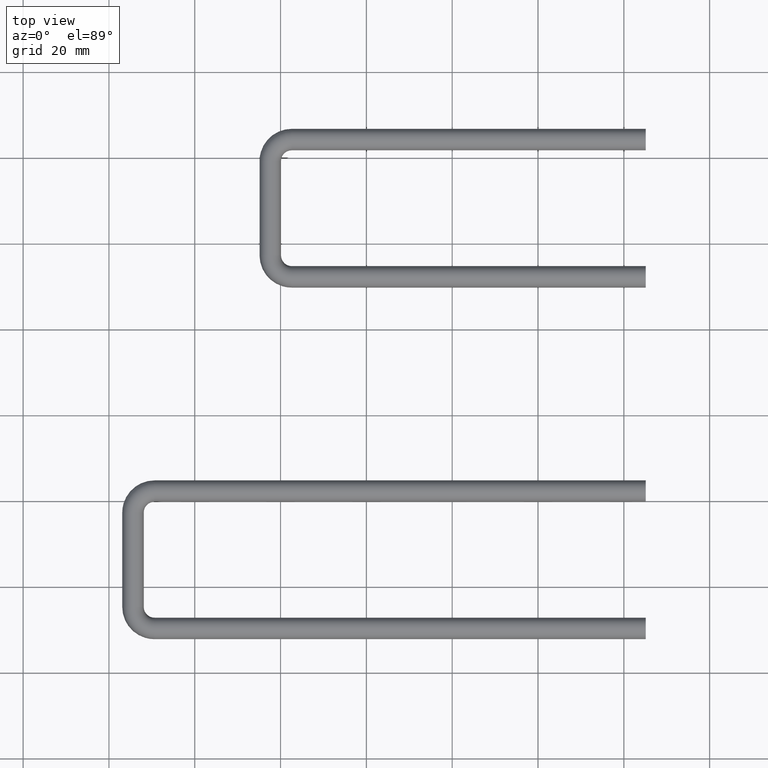
[diagram: clean part render]
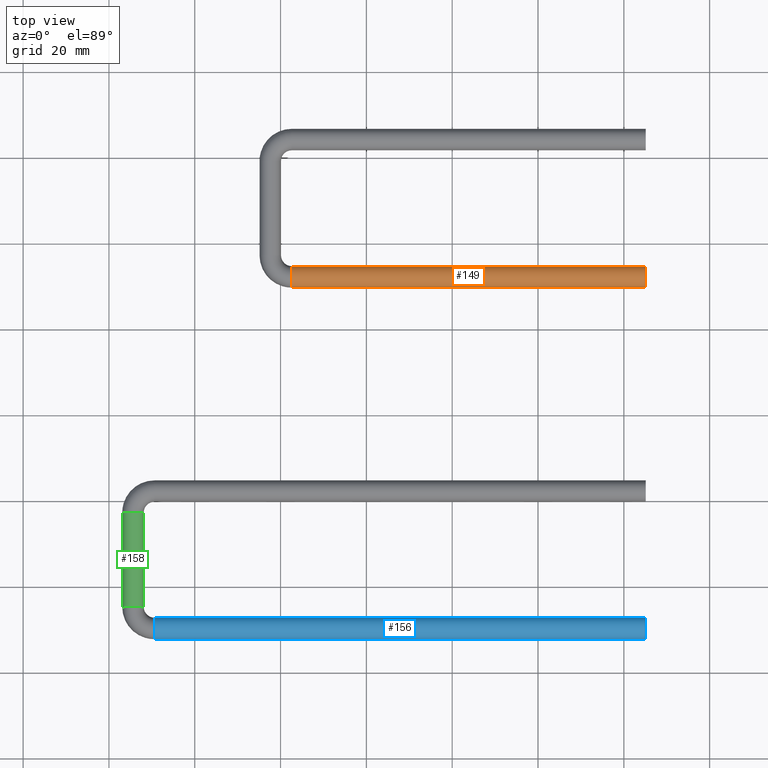
[diagram: same view with three faces highlighted in distinct colors, each labeled with its STEP entity id]
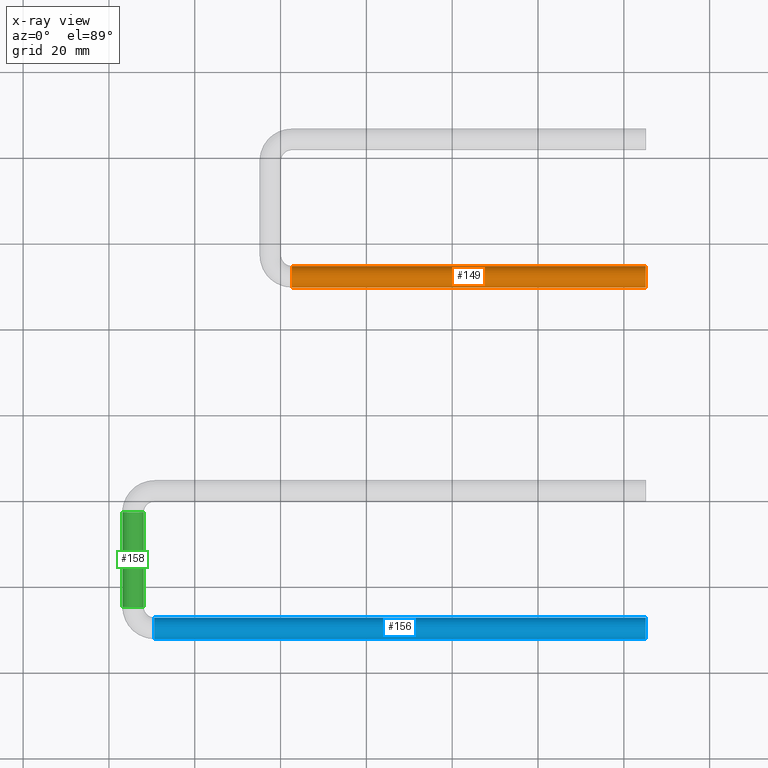
[diagram: x-ray of the same camera — body ghosted, the three highlighted faces saturated]
A machine part, top view with three faces highlighted in distinct colors.
The next image is the same camera in x-ray (body ghosted, the three faces saturated) — at least one of them is partly hidden behind the body in this view.
Their STEP definitions:

[orange] entity #149 — the highlighted cylindrical surface (bore or boss wall) has radius 2.5 mm, axis along (1, -0, -0).
#35=FACE_BOUND('',#60,.T.);
#45=FACE_OUTER_BOUND('',#59,.T.);
#59=EDGE_LOOP('',(#119));
#60=EDGE_LOOP('',(#120));
#83=CIRCLE('',#167,2.5);
#84=CIRCLE('',#168,2.5);
#95=VERTEX_POINT('',#260);
#96=VERTEX_POINT('',#262);
#107=EDGE_CURVE('',#95,#95,#83,.T.);
#108=EDGE_CURVE('',#96,#96,#84,.T.);
#119=ORIENTED_EDGE('',*,*,#107,.F.);
#120=ORIENTED_EDGE('',*,*,#108,.T.);
#143=CYLINDRICAL_SURFACE('',#166,2.5);
#149=ADVANCED_FACE('',(#45,#35),#143,.T.);
#166=AXIS2_PLACEMENT_3D('',#259,#198,#199);
#167=AXIS2_PLACEMENT_3D('',#261,#200,#201);
#168=AXIS2_PLACEMENT_3D('',#263,#202,#203);
#198=DIRECTION('center_axis',(1.,0.,0.));
#199=DIRECTION('ref_axis',(0.,1.,0.));
#200=DIRECTION('center_axis',(1.,7.11884744652049E-16,0.));
#201=DIRECTION('ref_axis',(-7.11884744652049E-16,1.,0.));
#202=DIRECTION('center_axis',(1.,7.11884744652049E-16,0.));
#203=DIRECTION('ref_axis',(-7.11884744652049E-16,1.,0.));
#259=CARTESIAN_POINT('Origin',(-38.75,-16.,0.));
#260=CARTESIAN_POINT('',(43.75,-18.5,3.06161699786838E-16));
#261=CARTESIAN_POINT('Origin',(43.75,-16.,0.));
#262=CARTESIAN_POINT('',(-38.75,-18.5,3.06161699786838E-16));
#263=CARTESIAN_POINT('Origin',(-38.75,-16.,0.));

[blue] entity #156 — the highlighted cylindrical surface (bore or boss wall) has radius 2.5 mm, axis along (1, 0, -0).
#40=FACE_BOUND('',#72,.T.);
#52=FACE_OUTER_BOUND('',#71,.T.);
#71=EDGE_LOOP('',(#131));
#72=EDGE_LOOP('',(#132));
#89=CIRCLE('',#181,2.5);
#90=CIRCLE('',#182,2.5);
#101=VERTEX_POINT('',#280);
#102=VERTEX_POINT('',#282);
#113=EDGE_CURVE('',#101,#101,#89,.T.);
#114=EDGE_CURVE('',#102,#102,#90,.T.);
#131=ORIENTED_EDGE('',*,*,#113,.F.);
#132=ORIENTED_EDGE('',*,*,#114,.T.);
#146=CYLINDRICAL_SURFACE('',#180,2.5);
#156=ADVANCED_FACE('',(#52,#40),#146,.T.);
#180=AXIS2_PLACEMENT_3D('',#279,#226,#227);
#181=AXIS2_PLACEMENT_3D('',#281,#228,#229);
#182=AXIS2_PLACEMENT_3D('',#283,#230,#231);
#226=DIRECTION('center_axis',(1.,1.35747793403949E-16,0.));
#227=DIRECTION('ref_axis',(-1.35747793403949E-16,1.,0.));
#228=DIRECTION('center_axis',(1.,1.10245823063463E-16,0.));
#229=DIRECTION('ref_axis',(-1.10245823063463E-16,1.,0.));
#230=DIRECTION('center_axis',(1.,1.10245823063463E-16,0.));
#231=DIRECTION('ref_axis',(-1.10245823063463E-16,1.,0.));
#279=CARTESIAN_POINT('Origin',(-54.75,-16.,0.));
#280=CARTESIAN_POINT('',(59.75,-18.5,3.06161699786838E-16));
#281=CARTESIAN_POINT('Origin',(59.75,-16.,0.));
#282=CARTESIAN_POINT('',(-54.75,-18.5,3.06161699786838E-16));
#283=CARTESIAN_POINT('Origin',(-54.75,-16.,0.));

[green] entity #158 — the highlighted cylindrical surface (bore or boss wall) has radius 2.5 mm, axis along (0, -1, -0).
#42=FACE_BOUND('',#76,.T.);
#54=FACE_OUTER_BOUND('',#75,.T.);
#75=EDGE_LOOP('',(#135));
#76=EDGE_LOOP('',(#136));
#91=CIRCLE('',#184,2.5);
#92=CIRCLE('',#186,2.5);
#103=VERTEX_POINT('',#285);
#104=VERTEX_POINT('',#288);
#115=EDGE_CURVE('',#103,#103,#91,.T.);
#116=EDGE_CURVE('',#104,#104,#92,.T.);
#135=ORIENTED_EDGE('',*,*,#115,.F.);
#136=ORIENTED_EDGE('',*,*,#116,.T.);
#147=CYLINDRICAL_SURFACE('',#185,2.5);
#158=ADVANCED_FACE('',(#54,#42),#147,.T.);
#184=AXIS2_PLACEMENT_3D('',#286,#234,#235);
#185=AXIS2_PLACEMENT_3D('',#287,#236,#237);
#186=AXIS2_PLACEMENT_3D('',#289,#238,#239);
#234=DIRECTION('center_axis',(1.71478163020831E-16,-1.,0.));
#235=DIRECTION('ref_axis',(1.,1.71478163020831E-16,0.));
#236=DIRECTION('center_axis',(0.,-1.,0.));
#237=DIRECTION('ref_axis',(1.,0.,0.));
#238=DIRECTION('center_axis',(1.71478163020831E-16,-1.,0.));
#239=DIRECTION('ref_axis',(1.,1.71478163020831E-16,0.));
#285=CARTESIAN_POINT('',(-62.25,-11.,3.06161699786838E-16));
#286=CARTESIAN_POINT('Origin',(-59.75,-11.,0.));
#287=CARTESIAN_POINT('Origin',(-59.75,11.,0.));
#288=CARTESIAN_POINT('',(-62.25,11.,3.06161699786838E-16));
#289=CARTESIAN_POINT('Origin',(-59.75,11.,0.));